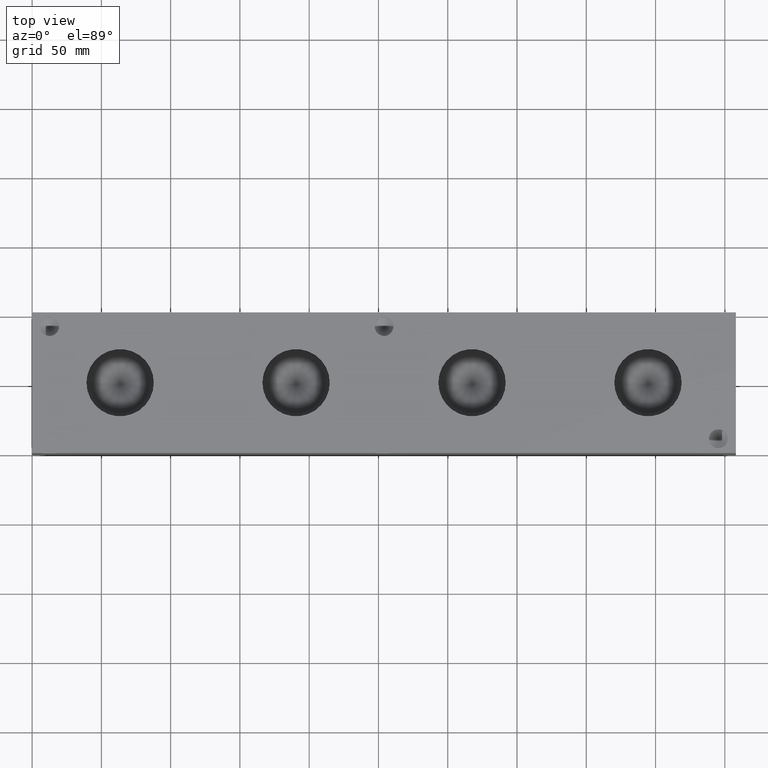
[diagram: clean part render]
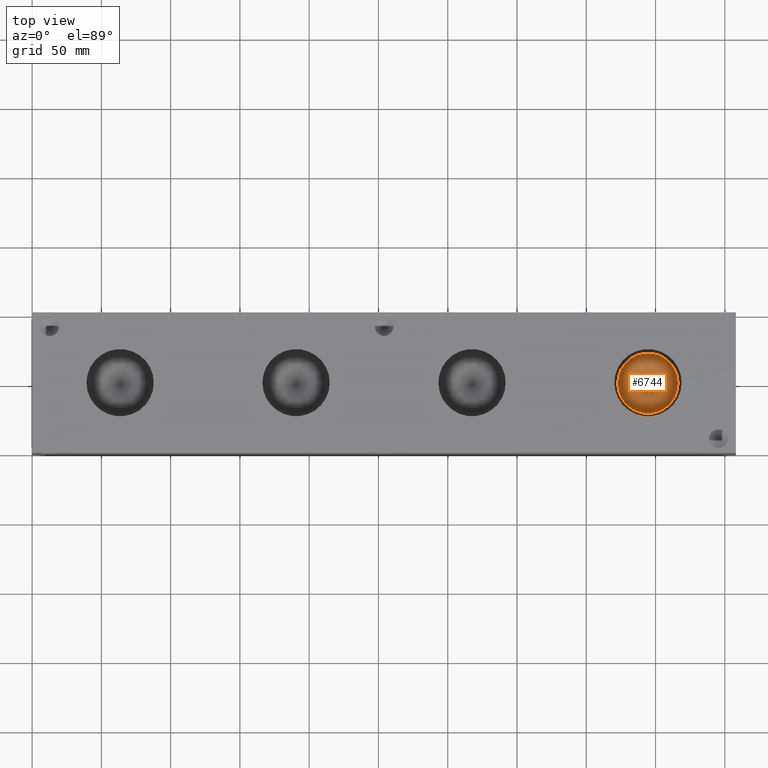
[diagram: same view with one face highlighted and labeled with its STEP entity id]
A machine part, top view. The second image highlights one B-rep face of the part: STEP entity #6744.
In plain terms, the highlighted conical surface has half-angle 60 deg.
Its self-contained STEP definition (entity closure, byte-faithful):
#41=CONICAL_SURFACE('',#7071,10.9093,1.0471975511966);
#91=CIRCLE('',#7072,21.8186);
#92=CIRCLE('',#7073,21.8186);
#716=FACE_OUTER_BOUND('',#1096,.T.);
#1096=EDGE_LOOP('',(#5969,#5970,#5971,#5972));
#1807=LINE('',#11262,#2509);
#2509=VECTOR('',#8389,10.9093);
#3276=VERTEX_POINT('',#11258);
#3277=VERTEX_POINT('',#11259);
#3278=VERTEX_POINT('',#11261);
#4184=EDGE_CURVE('',#3276,#3277,#91,.T.);
#4185=EDGE_CURVE('',#3277,#3278,#1807,.T.);
#4186=EDGE_CURVE('',#3277,#3276,#92,.T.);
#5969=ORIENTED_EDGE('',*,*,#4184,.T.);
#5970=ORIENTED_EDGE('',*,*,#4185,.T.);
#5971=ORIENTED_EDGE('',*,*,#4185,.F.);
#5972=ORIENTED_EDGE('',*,*,#4186,.T.);
#6744=ADVANCED_FACE('',(#716),#41,.F.);
#7071=AXIS2_PLACEMENT_3D('',#11257,#8385,#8386);
#7072=AXIS2_PLACEMENT_3D('',#11260,#8387,#8388);
#7073=AXIS2_PLACEMENT_3D('',#11263,#8390,#8391);
#8385=DIRECTION('center_axis',(0.,0.,1.));
#8386=DIRECTION('ref_axis',(1.,0.,0.));
#8387=DIRECTION('center_axis',(0.,0.,1.));
#8388=DIRECTION('ref_axis',(1.,0.,0.));
#8389=DIRECTION('',(0.866025403784438,1.06057523872491E-16,-0.5));
#8390=DIRECTION('center_axis',(0.,0.,1.));
#8391=DIRECTION('ref_axis',(1.,0.,0.));
#11257=CARTESIAN_POINT('Origin',(444.5,50.8,74.5346127083296));
#11258=CARTESIAN_POINT('',(466.3186,50.8,80.8331));
#11259=CARTESIAN_POINT('',(422.6814,50.8,80.8331));
#11260=CARTESIAN_POINT('Origin',(444.5,50.8,80.8331));
#11261=CARTESIAN_POINT('',(444.5,50.8,68.2361254166592));
#11262=CARTESIAN_POINT('',(433.5907,50.8,74.5346127083296));
#11263=CARTESIAN_POINT('Origin',(444.5,50.8,80.8331));